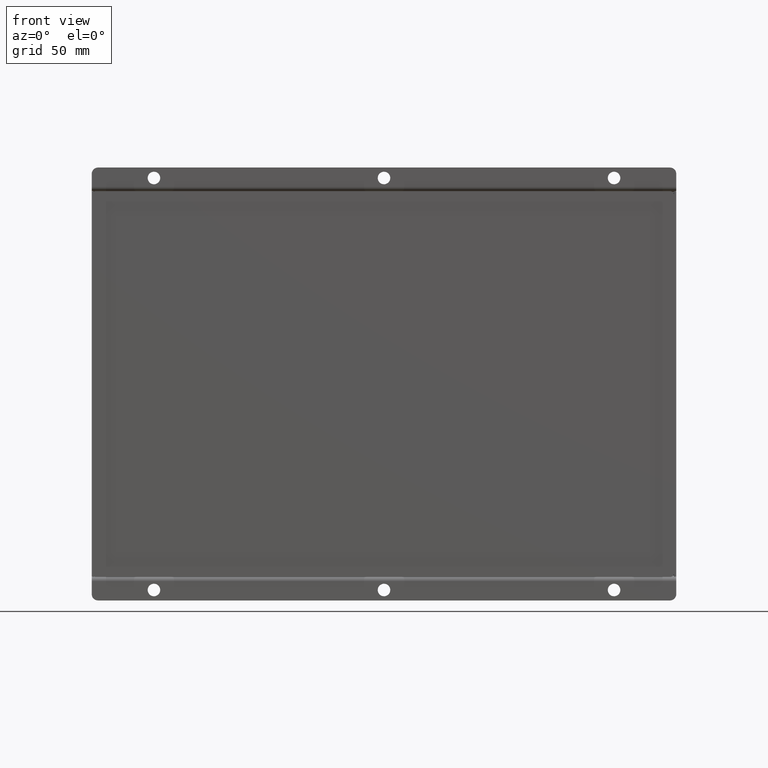
[diagram: clean part render]
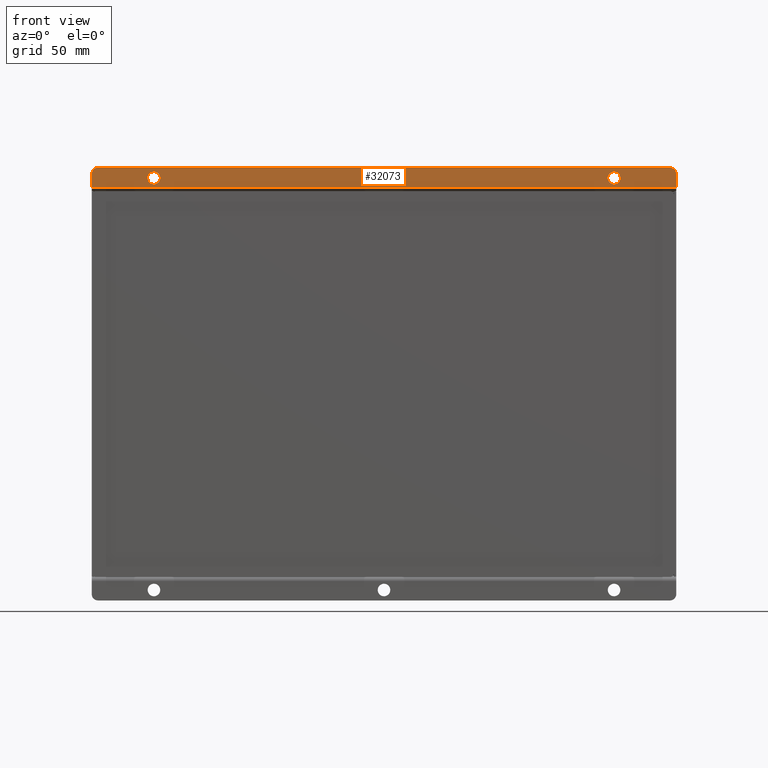
[diagram: same view with one face highlighted and labeled with its STEP entity id]
A machine part, front view. The second image highlights one B-rep face of the part: STEP entity #32073.
In plain terms, the highlighted planar face has unit normal (-0, 1, 0).
Its self-contained STEP definition (entity closure, byte-faithful):
#905=FACE_BOUND('',#6028,.T.);
#906=FACE_BOUND('',#6029,.T.);
#907=FACE_BOUND('',#6030,.T.);
#1908=PLANE('',#35258);
#4043=FACE_OUTER_BOUND('',#6027,.T.);
#6027=EDGE_LOOP('',(#28617,#28618,#28619,#28620,#28621,#28622));
#6028=EDGE_LOOP('',(#28623,#28624));
#6029=EDGE_LOOP('',(#28625,#28626));
#6030=EDGE_LOOP('',(#28627,#28628));
#8915=LINE('',#55225,#11834);
#8921=LINE('',#55241,#11840);
#8929=LINE('',#55266,#11848);
#8931=LINE('',#55273,#11850);
#11834=VECTOR('',#43351,10.);
#11840=VECTOR('',#43367,10.);
#11848=VECTOR('',#43397,10.);
#11850=VECTOR('',#43405,10.);
#13080=CIRCLE('',#35203,3.);
#13081=CIRCLE('',#35204,3.);
#13084=CIRCLE('',#35208,3.);
#13085=CIRCLE('',#35209,3.);
#13092=CIRCLE('',#35218,3.);
#13093=CIRCLE('',#35219,3.);
#13100=CIRCLE('',#35232,3.);
#13103=CIRCLE('',#35238,3.);
#15880=VERTEX_POINT('',#55141);
#15881=VERTEX_POINT('',#55142);
#15884=VERTEX_POINT('',#55151);
#15885=VERTEX_POINT('',#55152);
#15892=VERTEX_POINT('',#55171);
#15893=VERTEX_POINT('',#55172);
#15907=VERTEX_POINT('',#55212);
#15908=VERTEX_POINT('',#55213);
#15912=VERTEX_POINT('',#55223);
#15916=VERTEX_POINT('',#55235);
#15917=VERTEX_POINT('',#55239);
#15923=VERTEX_POINT('',#55265);
#20121=EDGE_CURVE('',#15880,#15881,#13080,.T.);
#20122=EDGE_CURVE('',#15881,#15880,#13081,.T.);
#20126=EDGE_CURVE('',#15884,#15885,#13084,.T.);
#20127=EDGE_CURVE('',#15885,#15884,#13085,.T.);
#20136=EDGE_CURVE('',#15892,#15893,#13092,.T.);
#20137=EDGE_CURVE('',#15893,#15892,#13093,.T.);
#20156=EDGE_CURVE('',#15907,#15908,#13100,.T.);
#20162=EDGE_CURVE('',#15912,#15907,#8915,.T.);
#20167=EDGE_CURVE('',#15916,#15912,#13103,.T.);
#20170=EDGE_CURVE('',#15917,#15916,#8921,.T.);
#20182=EDGE_CURVE('',#15917,#15923,#8929,.T.);
#20186=EDGE_CURVE('',#15908,#15923,#8931,.T.);
#28617=ORIENTED_EDGE('',*,*,#20156,.F.);
#28618=ORIENTED_EDGE('',*,*,#20162,.F.);
#28619=ORIENTED_EDGE('',*,*,#20167,.F.);
#28620=ORIENTED_EDGE('',*,*,#20170,.F.);
#28621=ORIENTED_EDGE('',*,*,#20182,.T.);
#28622=ORIENTED_EDGE('',*,*,#20186,.F.);
#28623=ORIENTED_EDGE('',*,*,#20121,.T.);
#28624=ORIENTED_EDGE('',*,*,#20122,.T.);
#28625=ORIENTED_EDGE('',*,*,#20126,.T.);
#28626=ORIENTED_EDGE('',*,*,#20127,.T.);
#28627=ORIENTED_EDGE('',*,*,#20136,.T.);
#28628=ORIENTED_EDGE('',*,*,#20137,.T.);
#32073=ADVANCED_FACE('',(#4043,#905,#906,#907),#1908,.F.);
#35203=AXIS2_PLACEMENT_3D('',#55143,#43268,#43269);
#35204=AXIS2_PLACEMENT_3D('',#55144,#43270,#43271);
#35208=AXIS2_PLACEMENT_3D('',#55153,#43279,#43280);
#35209=AXIS2_PLACEMENT_3D('',#55154,#43281,#43282);
#35218=AXIS2_PLACEMENT_3D('',#55173,#43301,#43302);
#35219=AXIS2_PLACEMENT_3D('',#55174,#43303,#43304);
#35232=AXIS2_PLACEMENT_3D('',#55214,#43341,#43342);
#35238=AXIS2_PLACEMENT_3D('',#55236,#43361,#43362);
#35258=AXIS2_PLACEMENT_3D('',#55283,#43417,#43418);
#43268=DIRECTION('center_axis',(7.16795595804342E-17,-5.89900192552102E-16,
1.));
#43269=DIRECTION('ref_axis',(1.,1.27562766537182E-16,-7.38426606112823E-17));
#43270=DIRECTION('center_axis',(7.16795595804342E-17,-5.89900192552102E-16,
1.));
#43271=DIRECTION('ref_axis',(1.,1.27562766537182E-16,-7.38426606112823E-17));
#43279=DIRECTION('center_axis',(7.16795595804342E-17,-5.89900192552102E-16,
1.));
#43280=DIRECTION('ref_axis',(1.,1.27562766537182E-16,-7.38426606112823E-17));
#43281=DIRECTION('center_axis',(7.16795595804342E-17,-5.89900192552102E-16,
1.));
#43282=DIRECTION('ref_axis',(1.,1.27562766537182E-16,-7.38426606112823E-17));
#43301=DIRECTION('center_axis',(7.16795595804342E-17,-5.89900192552102E-16,
1.));
#43302=DIRECTION('ref_axis',(1.,1.27562766537182E-16,-7.38426606112823E-17));
#43303=DIRECTION('center_axis',(7.16795595804342E-17,-5.89900192552102E-16,
1.));
#43304=DIRECTION('ref_axis',(1.,1.27562766537182E-16,-7.38426606112823E-17));
#43341=DIRECTION('center_axis',(7.16795595804342E-17,-5.89900192552102E-16,
1.));
#43342=DIRECTION('ref_axis',(-0.707106781186535,0.70710678118656,0.));
#43351=DIRECTION('',(-1.,-2.33010991258449E-16,4.23465720026125E-17));
#43361=DIRECTION('center_axis',(7.16795595804342E-17,-5.89900192552102E-16,
1.));
#43362=DIRECTION('ref_axis',(0.707106781186548,0.707106781186548,0.));
#43367=DIRECTION('',(8.47630408346163E-17,1.,3.05057857904565E-16));
#43397=DIRECTION('',(-1.,-2.33010991258452E-16,7.16795595804341E-17));
#43405=DIRECTION('',(-3.91602058001405E-14,-1.,-9.67330421331533E-16));
#43417=DIRECTION('center_axis',(7.16795595804342E-17,-5.89900192552102E-16,
1.));
#43418=DIRECTION('ref_axis',(1.05901378421225E-16,-1.,-5.89900192552102E-16));
#55141=CARTESIAN_POINT('',(3.,98.5,-12.));
#55142=CARTESIAN_POINT('',(-3.,98.5,-12.));
#55143=CARTESIAN_POINT('Origin',(-1.0862244886344E-30,98.5,-12.));
#55144=CARTESIAN_POINT('Origin',(-1.0862244886344E-30,98.5,-12.));
#55151=CARTESIAN_POINT('',(113.,98.5000000000001,-12.));
#55152=CARTESIAN_POINT('',(107.,98.5000000000001,-12.));
#55153=CARTESIAN_POINT('Origin',(110.,98.5000000000001,-12.));
#55154=CARTESIAN_POINT('Origin',(110.,98.5000000000001,-12.));
#55171=CARTESIAN_POINT('',(-107.,98.5,-11.9999999999999));
#55172=CARTESIAN_POINT('',(-113.,98.5,-12.));
#55173=CARTESIAN_POINT('Origin',(-110.,98.5,-12.));
#55174=CARTESIAN_POINT('Origin',(-110.,98.5,-12.));
#55212=CARTESIAN_POINT('',(-136.75,103.5,-12.));
#55213=CARTESIAN_POINT('',(-139.75,100.5,-12.));
#55214=CARTESIAN_POINT('Origin',(-136.75,100.5,-11.9999999999999));
#55223=CARTESIAN_POINT('',(136.75,103.5,-12.));
#55225=CARTESIAN_POINT('',(139.75,103.5,-12.));
#55235=CARTESIAN_POINT('',(139.75,100.5,-12.));
#55236=CARTESIAN_POINT('Origin',(136.75,100.5,-12.));
#55239=CARTESIAN_POINT('',(139.75,94.2499999999999,-12.));
#55241=CARTESIAN_POINT('',(139.75,94.2499999999999,-12.));
#55265=CARTESIAN_POINT('',(-139.75,94.2499999999999,-12.));
#55266=CARTESIAN_POINT('',(-1.40126678731171E-14,94.2499999999999,-12.));
#55273=CARTESIAN_POINT('',(-139.75,91.9880532894152,-12.));
#55283=CARTESIAN_POINT('Origin',(-1.05171997409356E-14,97.7440266447076,
-12.));